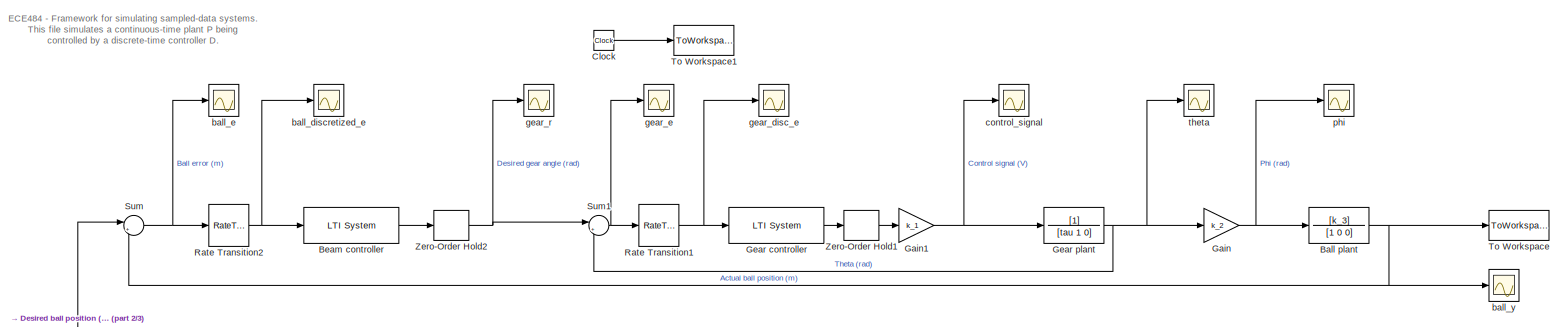
[diagram: root canvas - part 1/3, full width, top band]
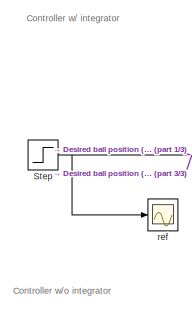
[diagram: root canvas - part 2/3, middle left region]
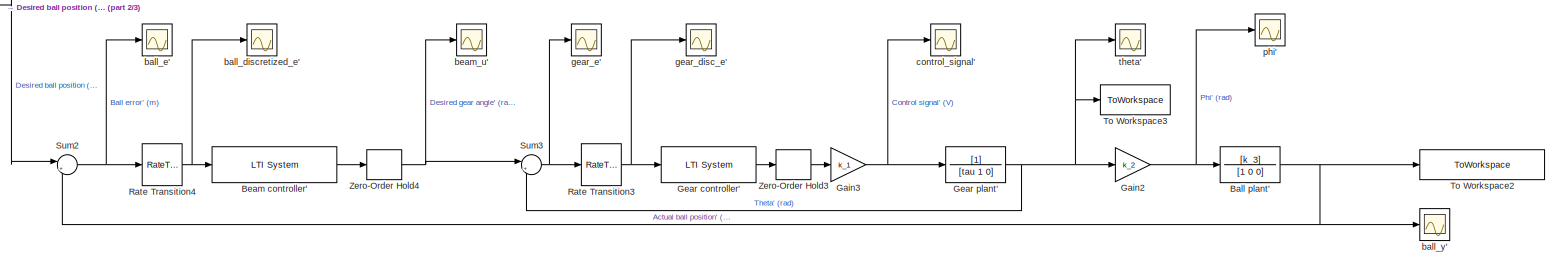
[diagram: root canvas - part 3/3, full width, bottom band]
MODEL slx_431e1d4a61da
KIND model
CONFIG AbsTol = 1e-12
CONFIG EnableMultiTasking = on
CONFIG FixedStep = T
CONFIG MaxStep = 0.01
CONFIG MinStep = auto
CONFIG RelTol = 1e-12
CONFIG SampleTimeConstraint = Unconstrained
CONFIG SolverName = ode45
CONFIG StartTime = 0.0
CONFIG StopTime = 15
BLOCK [TransferFcn] Ball plant
  Denominator = [1 0 0]
  Numerator = [k_3]
BLOCK [TransferFcn] Ball plant'
  Denominator = [1 0 0]
  Numerator = [k_3]
BLOCK [Reference] Beam controller  REF=cstblocks/LTI System
  SourceBlock = cstblocks/LTI System
  SourceType = LTI Block
BLOCK [Reference] Beam controller'  REF=cstblocks/LTI System
  SourceBlock = cstblocks/LTI System
  SourceType = LTI Block
BLOCK [Clock] Clock
BLOCK [Gain] Gain
  Gain = k_2
BLOCK [Gain] Gain1
  Gain = k_1
BLOCK [Gain] Gain2
  Gain = k_2
BLOCK [Gain] Gain3
  Gain = k_1
BLOCK [Reference] Gear controller  REF=cstblocks/LTI System
  SourceBlock = cstblocks/LTI System
  SourceType = LTI Block
BLOCK [Reference] Gear controller'  REF=cstblocks/LTI System
  SourceBlock = cstblocks/LTI System
  SourceType = LTI Block
BLOCK [TransferFcn] Gear plant
  Denominator = [tau 1 0]
BLOCK [TransferFcn] Gear plant'
  Denominator = [tau 1 0]
BLOCK [RateTransition] Rate Transition1
  OutPortSampleTime = gear_T
BLOCK [RateTransition] Rate Transition2
  OutPortSampleTime = gear_T
BLOCK [RateTransition] Rate Transition3
  OutPortSampleTime = gear_T
BLOCK [RateTransition] Rate Transition4
  OutPortSampleTime = gear_T
BLOCK [Step] Step
  After = 0.25
  Before = 0.1
  SampleTime = beam_T
  Time = 0
BLOCK [Sum] Sum
  Inputs = |+-
BLOCK [Sum] Sum1
  Inputs = |+-
BLOCK [Sum] Sum2
  Inputs = |+-
BLOCK [Sum] Sum3
  Inputs = |+-
BLOCK [ToWorkspace] To Workspace
  MaxDataPoints = inf
  SampleTime = -1
  VariableName = y_sim
BLOCK [ToWorkspace] To Workspace1
  MaxDataPoints = inf
  SampleTime = -1
  VariableName = t_sim
BLOCK [ToWorkspace] To Workspace2
  MaxDataPoints = inf
  SampleTime = -1
  VariableName = y_sim_no_integrator
BLOCK [ToWorkspace] To Workspace3
  MaxDataPoints = inf
  SampleTime = -1
  VariableName = u_sim_ni
BLOCK [ZeroOrderHold] Zero-Order Hold1
  SampleTime = gear_T
BLOCK [ZeroOrderHold] Zero-Order Hold2
  SampleTime = beam_T
BLOCK [ZeroOrderHold] Zero-Order Hold3
  SampleTime = gear_T
BLOCK [ZeroOrderHold] Zero-Order Hold4
  SampleTime = beam_T
BLOCK [Scope] ball_discretized_e
  ActiveDisplayYMaximum = 8.76404
  ActiveDisplayYMinimum = -7.94103
  DataLoggingDecimateData = on
  DataLoggingDecimation = 1
  DataLoggingSaveFormat = Structure With Time
  DataLoggingVariableName = ScopeData1
  Floating = off
  GraphicalSettings = {"Style":{"BackgroundColor":[0.12941176470588237,0.12941176470588237,0.12941176470588237],"AxesColor":[0.07058823529411765,0.07058823529411765,0.07058823529411765],"LabelsColor":[0.8509803921568627,0.8509803921568627,0.8509803921568627],"PreserveColors":false,"Visible":[true],"LineStyle":["-"],"LineWidth":[0.5],"BarWidth":[0.9],"LineColor":[[1,1,0]],"LineFaceAlpha":[1],"LineEdgeAlpha":[1],"Marker"...<+1907ch>
  MultipleDisplayCache = [{"MaxYLimMag":10,"MaxYLimReal":8.76404,"MinYLimMag":0,"MinYLimReal":-7.94103,"PlotAsMagnitudePhase":false,"ShowGrid":true,"ShowLegend":false,"Title":"%<SignalLabel>","YLabel":""}]
  NumInputPorts = 1
  ScopeFrameLocation = window
  WasSavedAsWebScope = on
  WindowPosition = [917.000000,460.000000,560.000000,420.000000,]
BLOCK [Scope] ball_discretized_e'
  ActiveDisplayYMaximum = 8.76404
  ActiveDisplayYMinimum = -7.94103
  DataLoggingDecimateData = on
  DataLoggingDecimation = 1
  DataLoggingSaveFormat = Structure With Time
  DataLoggingVariableName = ScopeData9
  Floating = off
  GraphicalSettings = {"Style":{"BackgroundColor":[0.12941176470588237,0.12941176470588237,0.12941176470588237],"AxesColor":[0.07058823529411765,0.07058823529411765,0.07058823529411765],"LabelsColor":[0.8509803921568627,0.8509803921568627,0.8509803921568627],"PreserveColors":false,"Visible":[true],"LineStyle":["-"],"LineWidth":[0.5],"BarWidth":[0.9],"LineColor":[[1,1,0]],"LineFaceAlpha":[1],"LineEdgeAlpha":[1],"Marker"...<+1907ch>
  MultipleDisplayCache = [{"MaxYLimMag":10,"MaxYLimReal":8.76404,"MinYLimMag":0,"MinYLimReal":-7.94103,"PlotAsMagnitudePhase":false,"ShowGrid":true,"ShowLegend":false,"Title":"%<SignalLabel>","YLabel":""}]
  NumInputPorts = 1
  ScopeFrameLocation = window
  WasSavedAsWebScope = on
  WindowPosition = [917.000000,460.000000,560.000000,420.000000,]
BLOCK [Scope] ball_e
  ActiveDisplayYMaximum = 0.29453546800834873
  ActiveDisplayYMinimum = -0.1508192120751386
  DataLoggingDecimateData = on
  DataLoggingDecimation = 1
  DataLoggingSaveFormat = Structure With Time
  DataLoggingVariableName = ScopeData1
  Floating = off
  GraphicalSettings = {"Style":{"BackgroundColor":[0.12941176470588237,0.12941176470588237,0.12941176470588237],"AxesColor":[0.07058823529411765,0.07058823529411765,0.07058823529411765],"LabelsColor":[0.8509803921568627,0.8509803921568627,0.8509803921568627],"PreserveColors":false,"Visible":[true],"LineStyle":["-"],"LineWidth":[0.5],"BarWidth":[0.9],"LineColor":[[1,1,0]],"LineFaceAlpha":[1],"LineEdgeAlpha":[1],"Marker"...<+1963ch>
  MultipleDisplayCache = [{"MaxYLimMag":0.29453546800834873,"MaxYLimReal":0.29453546800834873,"MinYLimMag":0,"MinYLimReal":-0.1508192120751386,"PlotAsMagnitudePhase":false,"ShowGrid":true,"ShowLegend":false,"Title":"%<SignalLabel>","YLabel":""}]
  NumInputPorts = 1
  ScopeFrameLocation = window
  WasSavedAsWebScope = on
  WindowPosition = [917.000000,460.000000,560.000000,420.000000,]
BLOCK [Scope] ball_e'
  ActiveDisplayYMaximum = 0.29453546800834873
  ActiveDisplayYMinimum = -0.1508192120751386
  DataLoggingDecimateData = on
  DataLoggingDecimation = 1
  DataLoggingSaveFormat = Structure With Time
  DataLoggingVariableName = ScopeData10
  Floating = off
  GraphicalSettings = {"Style":{"BackgroundColor":[0.12941176470588237,0.12941176470588237,0.12941176470588237],"AxesColor":[0.07058823529411765,0.07058823529411765,0.07058823529411765],"LabelsColor":[0.8509803921568627,0.8509803921568627,0.8509803921568627],"PreserveColors":false,"Visible":[true],"LineStyle":["-"],"LineWidth":[0.5],"BarWidth":[0.9],"LineColor":[[1,1,0]],"LineFaceAlpha":[1],"LineEdgeAlpha":[1],"Marker"...<+1963ch>
  MultipleDisplayCache = [{"MaxYLimMag":0.29453546800834873,"MaxYLimReal":0.29453546800834873,"MinYLimMag":0,"MinYLimReal":-0.1508192120751386,"PlotAsMagnitudePhase":false,"ShowGrid":true,"ShowLegend":false,"Title":"%<SignalLabel>","YLabel":""}]
  NumInputPorts = 1
  ScopeFrameLocation = window
  WasSavedAsWebScope = on
  WindowPosition = [917.000000,460.000000,560.000000,420.000000,]
BLOCK [Scope] ball_y
  ActiveDisplayYMaximum = 0.41033394929584704
  ActiveDisplayYMinimum = -0.0679732294513794
  DataLoggingDecimateData = on
  DataLoggingDecimation = 1
  DataLoggingSaveFormat = Structure With Time
  DataLoggingVariableName = ScopeData2
  Floating = off
  GraphicalSettings = {"Style":{"BackgroundColor":[0.12941176470588237,0.12941176470588237,0.12941176470588237],"AxesColor":[0.07058823529411765,0.07058823529411765,0.07058823529411765],"LabelsColor":[0.8509803921568627,0.8509803921568627,0.8509803921568627],"PreserveColors":false,"Visible":[true],"LineStyle":["-"],"LineWidth":[0.5],"BarWidth":[0.9],"LineColor":[[1,1,0]],"LineFaceAlpha":[1],"LineEdgeAlpha":[1],"Marker"...<+2003ch>
  MultipleDisplayCache = [{"MaxYLimMag":0.3904548397936542,"MaxYLimReal":0.41033394929584704,"MinYLimMag":0,"MinYLimReal":-0.0679732294513794,"PlotAsMagnitudePhase":false,"ShowGrid":true,"ShowLegend":false,"Title":"%<SignalLabel>","YLabel":""}]
  NumInputPorts = 1
  ScopeFrameLocation = window
  WasSavedAsWebScope = on
  WindowPosition = [758.000000,178.000000,640.000000,568.000000,]
BLOCK [Scope] ball_y'
  ActiveDisplayYMaximum = 0.3904548397936542
  ActiveDisplayYMinimum = -0.043383871088183791
  DataLoggingDecimateData = on
  DataLoggingDecimation = 1
  DataLoggingSaveFormat = Structure With Time
  DataLoggingVariableName = ScopeData11
  Floating = off
  GraphicalSettings = {"Style":{"BackgroundColor":[0.12941176470588237,0.12941176470588237,0.12941176470588237],"AxesColor":[0.07058823529411765,0.07058823529411765,0.07058823529411765],"LabelsColor":[0.8509803921568627,0.8509803921568627,0.8509803921568627],"PreserveColors":false,"Visible":[true],"LineStyle":["-"],"LineWidth":[0.5],"BarWidth":[0.9],"LineColor":[[1,1,0]],"LineFaceAlpha":[1],"LineEdgeAlpha":[1],"Marker"...<+2003ch>
  MultipleDisplayCache = [{"MaxYLimMag":0.3904548397936542,"MaxYLimReal":0.3904548397936542,"MinYLimMag":0,"MinYLimReal":-0.043383871088183791,"PlotAsMagnitudePhase":false,"ShowGrid":true,"ShowLegend":false,"Title":"%<SignalLabel>","YLabel":""}]
  NumInputPorts = 1
  ScopeFrameLocation = window
  WasSavedAsWebScope = on
  WindowPosition = [65.000000,182.000000,632.000000,568.000000,]
BLOCK [Scope] beam_u'
  ActiveDisplayYMaximum = 0.7860464572009227
  ActiveDisplayYMinimum = -1.2447455568058148
  DataLoggingDecimateData = on
  DataLoggingDecimation = 1
  DataLoggingSaveFormat = Structure With Time
  DataLoggingVariableName = ScopeData12
  Floating = off
  GraphicalSettings = {"Style":{"BackgroundColor":[0.12941176470588237,0.12941176470588237,0.12941176470588237],"AxesColor":[0.07058823529411765,0.07058823529411765,0.07058823529411765],"LabelsColor":[0.8509803921568627,0.8509803921568627,0.8509803921568627],"PreserveColors":false,"Visible":[true],"LineStyle":["-"],"LineWidth":[0.5],"BarWidth":[0.9],"LineColor":[[1,1,0]],"LineFaceAlpha":[1],"LineEdgeAlpha":[1],"Marker"...<+2268ch>
  MultipleDisplayCache = [{"MaxYLimMag":1.2447455568058148,"MaxYLimReal":0.7860464572009227,"MinYLimMag":0,"MinYLimReal":-1.2447455568058148,"PlotAsMagnitudePhase":false,"ShowGrid":true,"ShowLegend":false,"Title":"%<SignalLabel>","YLabel":""}]
  NumInputPorts = 1
  ScopeFrameLocation = window
  WasSavedAsWebScope = on
  WindowPosition = [917.000000,460.000000,560.000000,420.000000,]
BLOCK [Scope] control_signal
  ActiveDisplayYMaximum = 22.704310447758754
  ActiveDisplayYMinimum = -18.52737587654768
  DataLoggingDecimateData = on
  DataLoggingDecimation = 1
  DataLoggingSaveFormat = Structure With Time
  DataLoggingVariableName = ScopeData8
  Floating = off
  GraphicalSettings = {"Style":{"BackgroundColor":[0.12941176470588237,0.12941176470588237,0.12941176470588237],"AxesColor":[0.07058823529411765,0.07058823529411765,0.07058823529411765],"LabelsColor":[0.8509803921568627,0.8509803921568627,0.8509803921568627],"PreserveColors":false,"Visible":[true],"LineStyle":["-"],"LineWidth":[0.5],"BarWidth":[0.9],"LineColor":[[1,1,0]],"LineFaceAlpha":[1],"LineEdgeAlpha":[1],"Marker"...<+1985ch>
  MultipleDisplayCache = [{"MaxYLimMag":22.704310447758754,"MaxYLimReal":22.704310447758754,"MinYLimMag":0,"MinYLimReal":-18.52737587654768,"PlotAsMagnitudePhase":false,"ShowGrid":true,"ShowLegend":false,"Title":"%<SignalLabel>","YLabel":""}]
  NumInputPorts = 1
  ScopeFrameLocation = window
  WasSavedAsWebScope = on
  WindowPosition = [32.000000,102.000000,853.000000,832.000000,]
BLOCK [Scope] control_signal'
  ActiveDisplayYMaximum = 22.704310447758754
  ActiveDisplayYMinimum = -18.52737587654768
  DataLoggingDecimateData = on
  DataLoggingDecimation = 1
  DataLoggingSaveFormat = Structure With Time
  DataLoggingVariableName = ScopeData13
  Floating = off
  GraphicalSettings = {"Style":{"BackgroundColor":[0.12941176470588237,0.12941176470588237,0.12941176470588237],"AxesColor":[0.07058823529411765,0.07058823529411765,0.07058823529411765],"LabelsColor":[0.8509803921568627,0.8509803921568627,0.8509803921568627],"PreserveColors":false,"Visible":[true],"LineStyle":["-"],"LineWidth":[0.5],"BarWidth":[0.9],"LineColor":[[1,1,0]],"LineFaceAlpha":[1],"LineEdgeAlpha":[1],"Marker"...<+1985ch>
  MultipleDisplayCache = [{"MaxYLimMag":22.704310447758754,"MaxYLimReal":22.704310447758754,"MinYLimMag":0,"MinYLimReal":-18.52737587654768,"PlotAsMagnitudePhase":false,"ShowGrid":true,"ShowLegend":false,"Title":"%<SignalLabel>","YLabel":""}]
  NumInputPorts = 1
  ScopeFrameLocation = window
  WasSavedAsWebScope = on
  WindowPosition = [162.000000,338.000000,560.000000,420.000000,]
BLOCK [Scope] gear_disc_e
  ActiveDisplayYMaximum = 20.79205
  ActiveDisplayYMinimum = -15.91123
  DataLoggingDecimateData = on
  DataLoggingDecimation = 1
  DataLoggingSaveFormat = Structure With Time
  DataLoggingVariableName = ScopeData4
  Floating = off
  GraphicalSettings = {"Style":{"BackgroundColor":[0.12941176470588237,0.12941176470588237,0.12941176470588237],"AxesColor":[0.07058823529411765,0.07058823529411765,0.07058823529411765],"LabelsColor":[0.8509803921568627,0.8509803921568627,0.8509803921568627],"PreserveColors":false,"Visible":[true],"LineStyle":["-"],"LineWidth":[0.5],"BarWidth":[0.9],"LineColor":[[1,1,0]],"LineFaceAlpha":[1],"LineEdgeAlpha":[1],"Marker"...<+2191ch>  <repeated x4 — deduplicated; at blocks: gear_disc_e, gear_disc_e', gear_e, gear_e'>
  MultipleDisplayCache = [{"MaxYLimMag":10,"MaxYLimReal":20.79205,"MinYLimMag":0,"MinYLimReal":-15.91123,"PlotAsMagnitudePhase":false,"ShowGrid":true,"ShowLegend":false,"Title":"%<SignalLabel>","YLabel":""}]  <repeated x4 — deduplicated; at blocks: gear_disc_e, gear_disc_e', gear_e, gear_e'>
  NumInputPorts = 1
  ScopeFrameLocation = window
  WasSavedAsWebScope = on
  WindowPosition = [680.000000,330.000000,560.000000,420.000000,]
BLOCK [Scope] gear_disc_e'
  ActiveDisplayYMaximum = 20.79205
  ActiveDisplayYMinimum = -15.91123
  DataLoggingDecimateData = on
  DataLoggingDecimation = 1
  DataLoggingSaveFormat = Structure With Time
  DataLoggingVariableName = ScopeData15
  Floating = off
  NumInputPorts = 1
  ScopeFrameLocation = window
  WasSavedAsWebScope = on
  WindowPosition = [680.000000,330.000000,560.000000,420.000000,]
BLOCK [Scope] gear_e
  ActiveDisplayYMaximum = 20.79205
  ActiveDisplayYMinimum = -15.91123
  DataLoggingDecimateData = on
  DataLoggingDecimation = 1
  DataLoggingSaveFormat = Structure With Time
  DataLoggingVariableName = ScopeData7
  Floating = off
  NumInputPorts = 1
  ScopeFrameLocation = window
  WasSavedAsWebScope = on
  WindowPosition = [680.000000,330.000000,560.000000,420.000000,]
BLOCK [Scope] gear_e'
  ActiveDisplayYMaximum = 20.79205
  ActiveDisplayYMinimum = -15.91123
  DataLoggingDecimateData = on
  DataLoggingDecimation = 1
  DataLoggingSaveFormat = Structure With Time
  DataLoggingVariableName = ScopeData14
  Floating = off
  NumInputPorts = 1
  ScopeFrameLocation = window
  WasSavedAsWebScope = on
  WindowPosition = [680.000000,330.000000,560.000000,420.000000,]
BLOCK [Scope] gear_r
  ActiveDisplayYMaximum = 0.7860464572009227
  ActiveDisplayYMinimum = -1.2447455568058148
  DataLoggingDecimateData = on
  DataLoggingDecimation = 1
  DataLoggingSaveFormat = Structure With Time
  Floating = off
  GraphicalSettings = {"Style":{"BackgroundColor":[0.12941176470588237,0.12941176470588237,0.12941176470588237],"AxesColor":[0.07058823529411765,0.07058823529411765,0.07058823529411765],"LabelsColor":[0.8509803921568627,0.8509803921568627,0.8509803921568627],"PreserveColors":false,"Visible":[true],"LineStyle":["-"],"LineWidth":[0.5],"BarWidth":[0.9],"LineColor":[[1,1,0]],"LineFaceAlpha":[1],"LineEdgeAlpha":[1],"Marker"...<+2268ch>
  MultipleDisplayCache = [{"MaxYLimMag":1.2447455568058148,"MaxYLimReal":0.7860464572009227,"MinYLimMag":0,"MinYLimReal":-1.2447455568058148,"PlotAsMagnitudePhase":false,"ShowGrid":true,"ShowLegend":false,"Title":"%<SignalLabel>","YLabel":""}]
  NumInputPorts = 1
  ScopeFrameLocation = window
  WasSavedAsWebScope = on
  WindowPosition = [917.000000,460.000000,560.000000,420.000000,]
BLOCK [Scope] phi
  ActiveDisplayYMaximum = 0.077988379870732927
  ActiveDisplayYMinimum = -0.09609099624241621
  DataLoggingDecimateData = on
  DataLoggingDecimation = 1
  DataLoggingSaveFormat = Structure With Time
  DataLoggingVariableName = ScopeData6
  Floating = off
  GraphicalSettings = {"Style":{"BackgroundColor":[0.12941176470588237,0.12941176470588237,0.12941176470588237],"AxesColor":[0.07058823529411765,0.07058823529411765,0.07058823529411765],"LabelsColor":[0.8509803921568627,0.8509803921568627,0.8509803921568627],"PreserveColors":false,"Visible":[true],"LineStyle":["-"],"LineWidth":[0.5],"BarWidth":[0.9],"LineColor":[[1,1,0]],"LineFaceAlpha":[1],"LineEdgeAlpha":[1],"Marker"...<+2256ch>
  MultipleDisplayCache = [{"MaxYLimMag":0.09609099624241621,"MaxYLimReal":0.077988379870732927,"MinYLimMag":0,"MinYLimReal":-0.09609099624241621,"PlotAsMagnitudePhase":false,"ShowGrid":true,"ShowLegend":false,"Title":"%<SignalLabel>","YLabel":""}]
  NumInputPorts = 1
  ScopeFrameLocation = window
  WasSavedAsWebScope = on
  WindowPosition = [142.000000,309.000000,560.000000,420.000000,]
BLOCK [Scope] phi'
  ActiveDisplayYMaximum = 0.077988379870732927
  ActiveDisplayYMinimum = -0.09609099624241621
  DataLoggingDecimateData = on
  DataLoggingDecimation = 1
  DataLoggingSaveFormat = Structure With Time
  DataLoggingVariableName = ScopeData16
  Floating = off
  GraphicalSettings = {"Style":{"BackgroundColor":[0.12941176470588237,0.12941176470588237,0.12941176470588237],"AxesColor":[0.07058823529411765,0.07058823529411765,0.07058823529411765],"LabelsColor":[0.8509803921568627,0.8509803921568627,0.8509803921568627],"PreserveColors":false,"Visible":[true],"LineStyle":["-"],"LineWidth":[0.5],"BarWidth":[0.9],"LineColor":[[1,1,0]],"LineFaceAlpha":[1],"LineEdgeAlpha":[1],"Marker"...<+2256ch>
  MultipleDisplayCache = [{"MaxYLimMag":0.09609099624241621,"MaxYLimReal":0.077988379870732927,"MinYLimMag":0,"MinYLimReal":-0.09609099624241621,"PlotAsMagnitudePhase":false,"ShowGrid":true,"ShowLegend":false,"Title":"%<SignalLabel>","YLabel":""}]
  NumInputPorts = 1
  ScopeFrameLocation = window
  WasSavedAsWebScope = on
  WindowPosition = [832.000000,326.000000,560.000000,420.000000,]
BLOCK [Scope] ref
  ActiveDisplayYMaximum = 0.35
  ActiveDisplayYMinimum = 0.15
  DataLoggingDecimateData = on
  DataLoggingDecimation = 1
  DataLoggingSaveFormat = Structure With Time
  DataLoggingVariableName = ScopeData3
  Floating = off
  GraphicalSettings = {"Style":{"BackgroundColor":[0.12941176470588237,0.12941176470588237,0.12941176470588237],"AxesColor":[0.07058823529411765,0.07058823529411765,0.07058823529411765],"LabelsColor":[0.8509803921568627,0.8509803921568627,0.8509803921568627],"PreserveColors":false,"Visible":[true],"LineStyle":["-"],"LineWidth":[0.5],"BarWidth":[0.9],"LineColor":[[1,1,0]],"LineFaceAlpha":[1],"LineEdgeAlpha":[1],"Marker"...<+1923ch>
  MultipleDisplayCache = [{"MaxYLimMag":0.35,"MaxYLimReal":0.35,"MinYLimMag":0.15,"MinYLimReal":0.15,"PlotAsMagnitudePhase":false,"ShowGrid":true,"ShowLegend":false,"Title":"%<SignalLabel>","YLabel":""}]
  NumInputPorts = 1
  ScopeFrameLocation = window
  WasSavedAsWebScope = on
  WindowPosition = [917.000000,460.000000,560.000000,420.000000,]
BLOCK [Scope] theta
  ActiveDisplayYMaximum = 1.2803871209844129
  ActiveDisplayYMinimum = -1.5775897570503243
  DataLoggingDecimateData = on
  DataLoggingDecimation = 1
  DataLoggingSaveFormat = Structure With Time
  DataLoggingVariableName = ScopeData5
  Floating = off
  GraphicalSettings = {"Style":{"BackgroundColor":[0.12941176470588237,0.12941176470588237,0.12941176470588237],"AxesColor":[0.07058823529411765,0.07058823529411765,0.07058823529411765],"LabelsColor":[0.8509803921568627,0.8509803921568627,0.8509803921568627],"PreserveColors":false,"Visible":[true],"LineStyle":["-"],"LineWidth":[0.5],"BarWidth":[0.9],"LineColor":[[1,1,0]],"LineFaceAlpha":[1],"LineEdgeAlpha":[1],"Marker"...<+2254ch>
  MultipleDisplayCache = [{"MaxYLimMag":1.5775897570503243,"MaxYLimReal":1.2803871209844129,"MinYLimMag":0,"MinYLimReal":-1.5775897570503243,"PlotAsMagnitudePhase":false,"ShowGrid":true,"ShowLegend":false,"Title":"%<SignalLabel>","YLabel":""}]
  NumInputPorts = 1
  ScopeFrameLocation = window
  WasSavedAsWebScope = on
  WindowPosition = [915.000000,510.000000,560.000000,420.000000,]
BLOCK [Scope] theta'
  ActiveDisplayYMaximum = 1.2803871209844129
  ActiveDisplayYMinimum = -1.5775897570503243
  DataLoggingDecimateData = on
  DataLoggingDecimation = 1
  DataLoggingSaveFormat = Structure With Time
  DataLoggingVariableName = ScopeData18
  Floating = off
  GraphicalSettings = {"Style":{"BackgroundColor":[0.12941176470588237,0.12941176470588237,0.12941176470588237],"AxesColor":[0.07058823529411765,0.07058823529411765,0.07058823529411765],"LabelsColor":[0.8509803921568627,0.8509803921568627,0.8509803921568627],"PreserveColors":false,"Visible":[true],"LineStyle":["-"],"LineWidth":[0.5],"BarWidth":[0.9],"LineColor":[[1,1,0]],"LineFaceAlpha":[1],"LineEdgeAlpha":[1],"Marker"...<+2254ch>
  MultipleDisplayCache = [{"MaxYLimMag":1.5775897570503243,"MaxYLimReal":1.2803871209844129,"MinYLimMag":0,"MinYLimReal":-1.5775897570503243,"PlotAsMagnitudePhase":false,"ShowGrid":true,"ShowLegend":false,"Title":"%<SignalLabel>","YLabel":""}]
  NumInputPorts = 1
  ScopeFrameLocation = window
  WasSavedAsWebScope = on
  WindowPosition = [162.000000,338.000000,560.000000,420.000000,]
ANNOTATION (root): Controller w/ integrator
ANNOTATION (root): Controller w/o integrator
ANNOTATION (root): ECE484 - Framework for simulating sampled-data systems. This file simulates a continuous-time plant P being controlled by a discrete-time controller D.
NET Ball plant':1 -> Sum2:2, To Workspace2:1, ball_y':1
NET Ball plant:1 -> Sum:2, To Workspace:1, ball_y:1
LINE Beam controller':1 -> Zero-Order Hold4:1
LINE Beam controller:1 -> Zero-Order Hold2:1
LINE Clock:1 -> To Workspace1:1
NET Gain1:1 -> Gear plant:1, control_signal:1
NET Gain2:1 -> Ball plant':1, phi':1
NET Gain3:1 -> Gear plant':1, control_signal':1
NET Gain:1 -> Ball plant:1, phi:1
LINE Gear controller':1 -> Zero-Order Hold3:1
LINE Gear controller:1 -> Zero-Order Hold1:1
NET Gear plant':1 -> Gain2:1, Sum3:2, To Workspace3:1, theta':1
NET Gear plant:1 -> Gain:1, Sum1:2, theta:1
NET Rate Transition1:1 -> Gear controller:1, gear_disc_e:1
NET Rate Transition2:1 -> Beam controller:1, ball_discretized_e:1
NET Rate Transition3:1 -> Gear controller':1, gear_disc_e':1
NET Rate Transition4:1 -> Beam controller':1, ball_discretized_e':1
NET Step:1 -> Sum2:1, Sum:1, ref:1
NET Sum1:1 -> Rate Transition1:1, gear_e:1
NET Sum2:1 -> Rate Transition4:1, ball_e':1
NET Sum3:1 -> Rate Transition3:1, gear_e':1
NET Sum:1 -> Rate Transition2:1, ball_e:1
LINE Zero-Order Hold1:1 -> Gain1:1
NET Zero-Order Hold2:1 -> Sum1:1, gear_r:1
LINE Zero-Order Hold3:1 -> Gain3:1
NET Zero-Order Hold4:1 -> Sum3:1, beam_u':1
note: NET lines group one-source signal fan-out (src -> all destinations, sorted); 1:1 wires keep LINE
